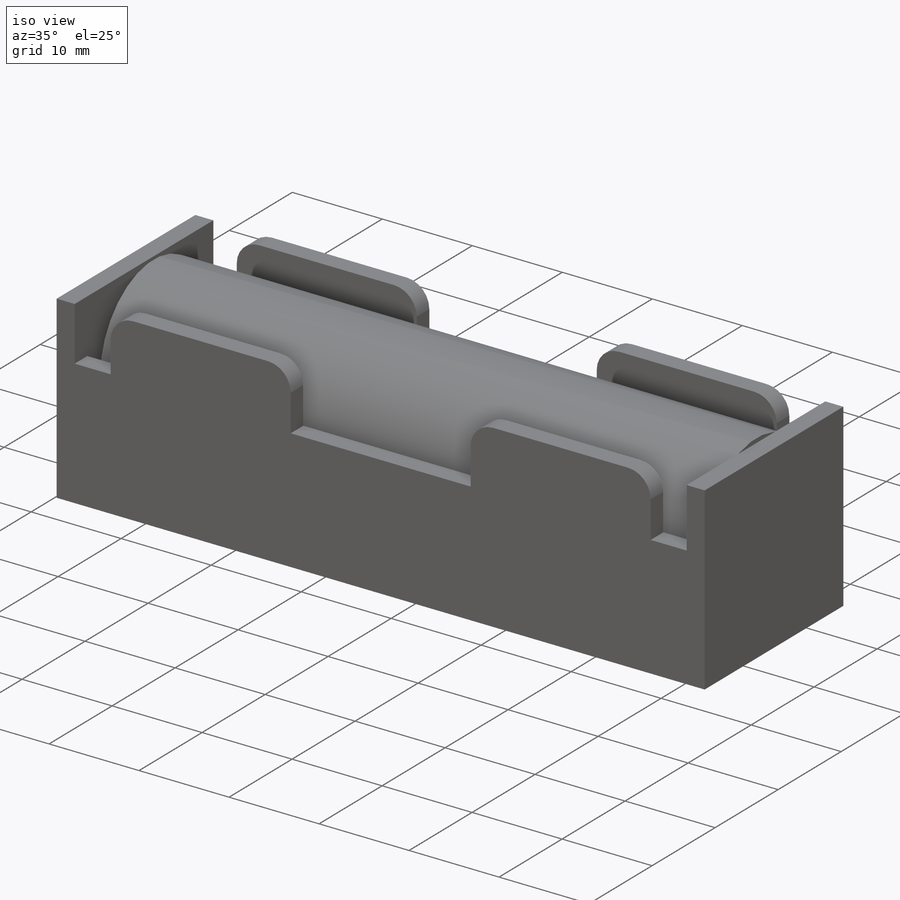
[diagram: iso view]
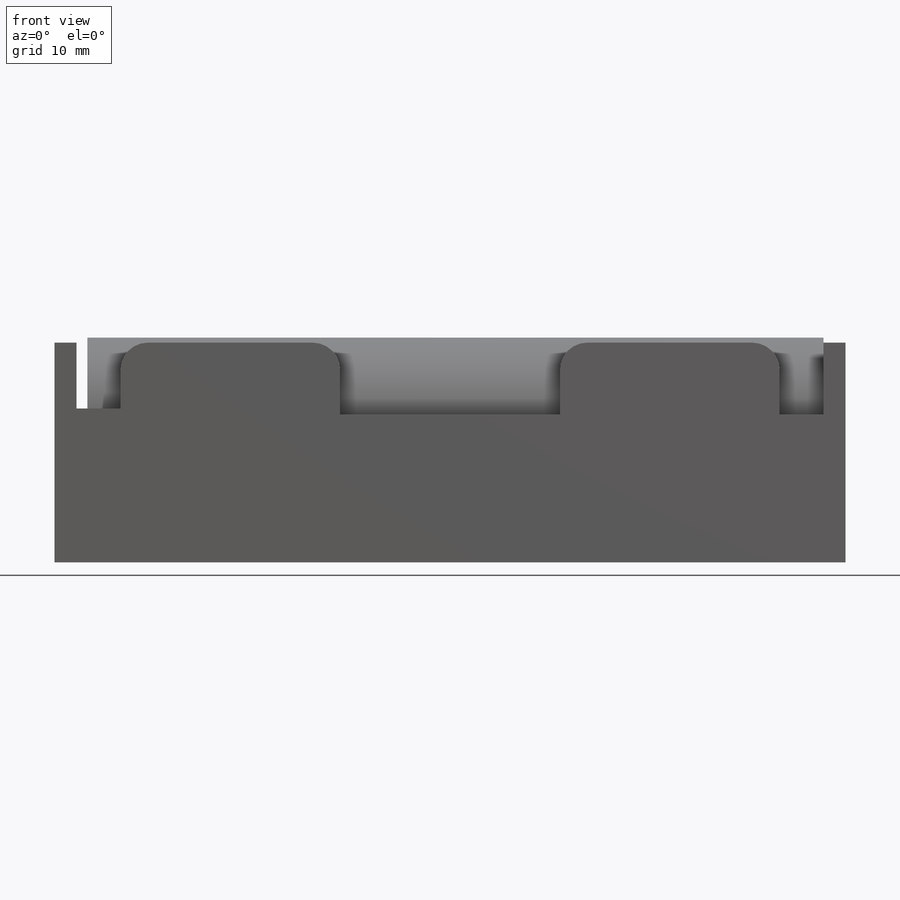
[diagram: front view]
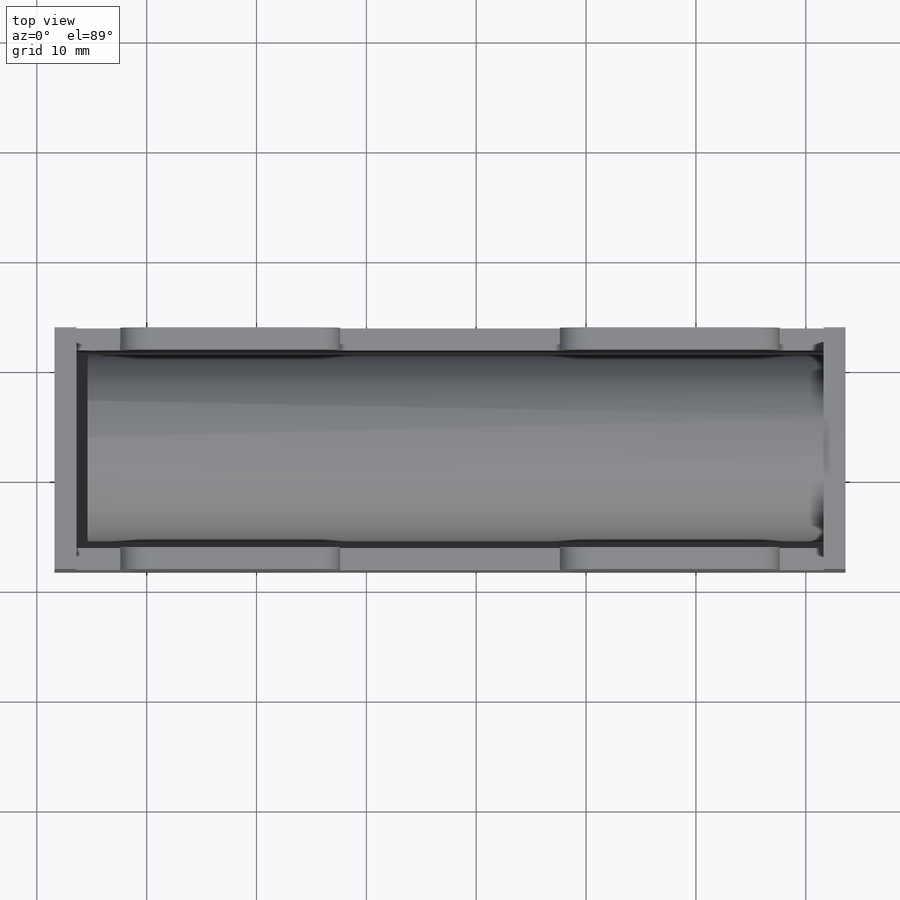
[diagram: top view]
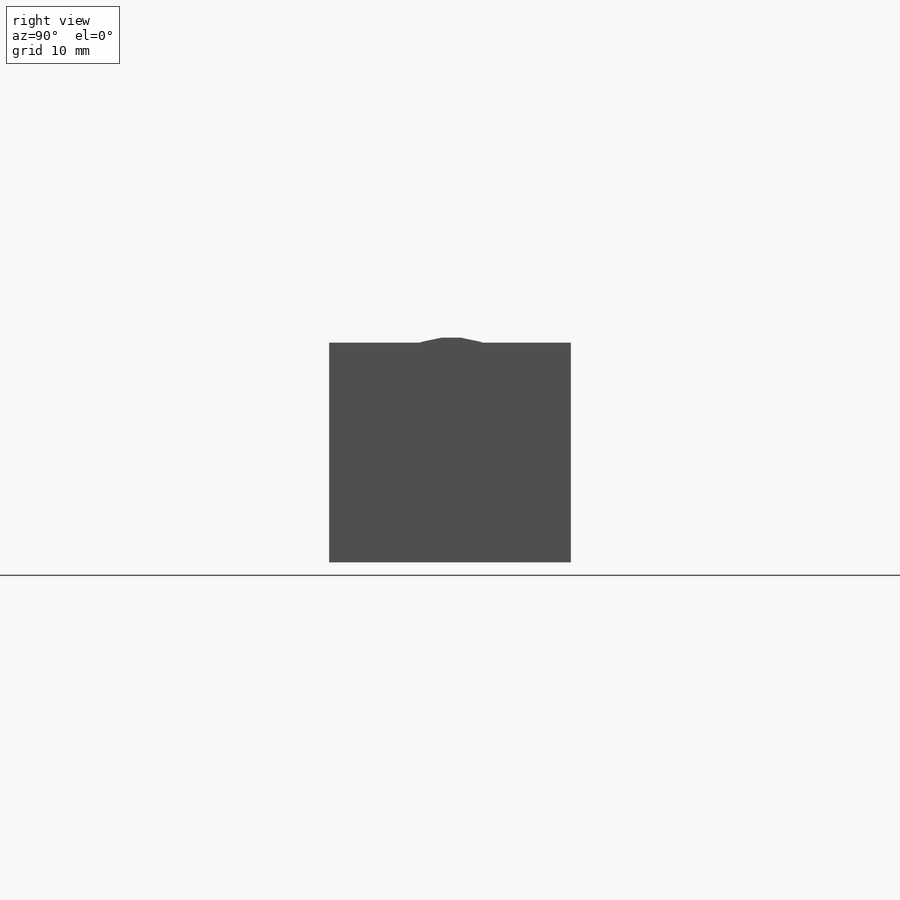
[diagram: right view]
SOLIDWORKS PART (.sldprt)
format: sldprt  version: not decoded by parser v0  size: 311,296 bytes
history: native  units: mm
features: sketch x5, extrude x2, cut_extrude x2, material x1 (+13 scaffold rows collapsed)
feature tree (23):
  scaffold x13  (default folders/planes/origin — collapsed)
  material  "Material <not specified>"
  sketch  "Sketch1"  dims[D1=72.0mm D2=22.0mm]
  extrude  "Boss-Extrude1"  Depth=20mm
  sketch  "Sketch2"  dims[D1=2.0mm D2=2.0mm D3=2.0mm D4=2.0mm]
  cut_extrude  "Cut-Extrude1"  Depth=18mm
  sketch  "Sketch4"  dims[c1.D1=5.0mm c1.D2=~4.998621mm c1.D3=5.0mm c1.D4=5.0mm c1.D5=20.0mm c1.D6=15.0mm c1.D7=15.0mm c1.D8=6.0mm c1.D9=~6.00069mm c1.D10=~5.992973mm c2.D9=2.0mm c2.D10=~4.00069mm c2.D11=6.0mm c2.D8=2.0mm]
  cut_extrude  "Cut-Extrude2"  Depth=30mm
  sketch  "Sketch5"  dims[D1=17.0mm D2=8.0mm]
  extrude  "Boss-Extrude3"  Depth=67mm
  sketch  "Sketch6"  dims[D1=17.0mm D2=8.0mm]
decode coverage: 9 of 9 modeling features carry decoded parameters
note: ~ marks probable driven/reference dimensions
note: suppression state not decoded; provenance and decode notes live in map.json
